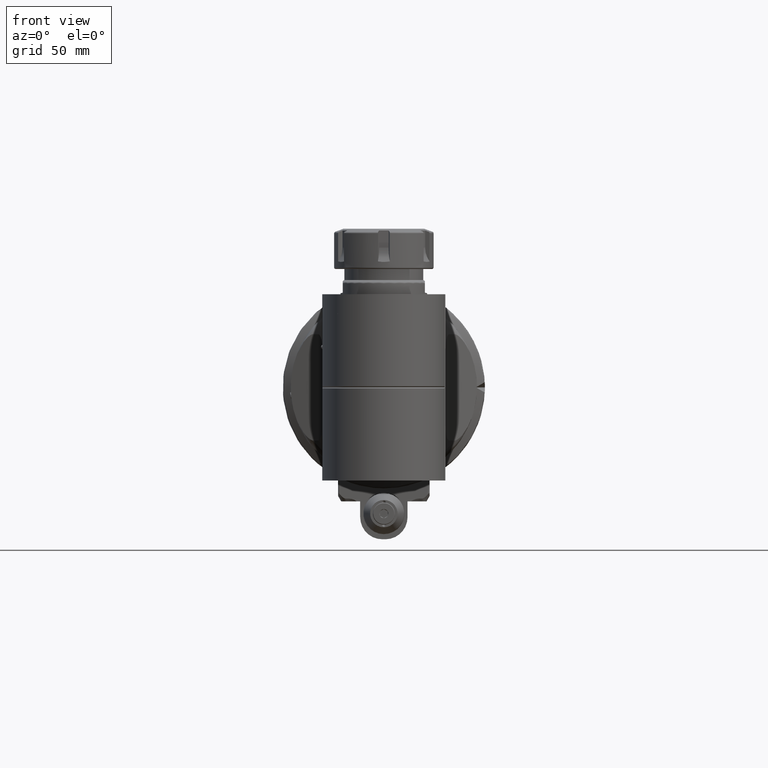
[diagram: clean part render]
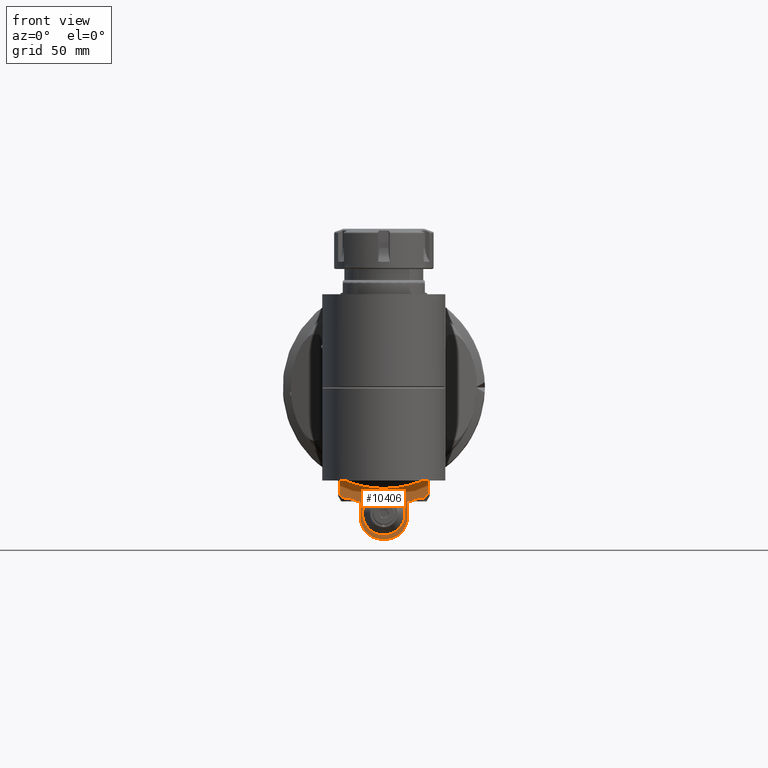
[diagram: same view with one face highlighted and labeled with its STEP entity id]
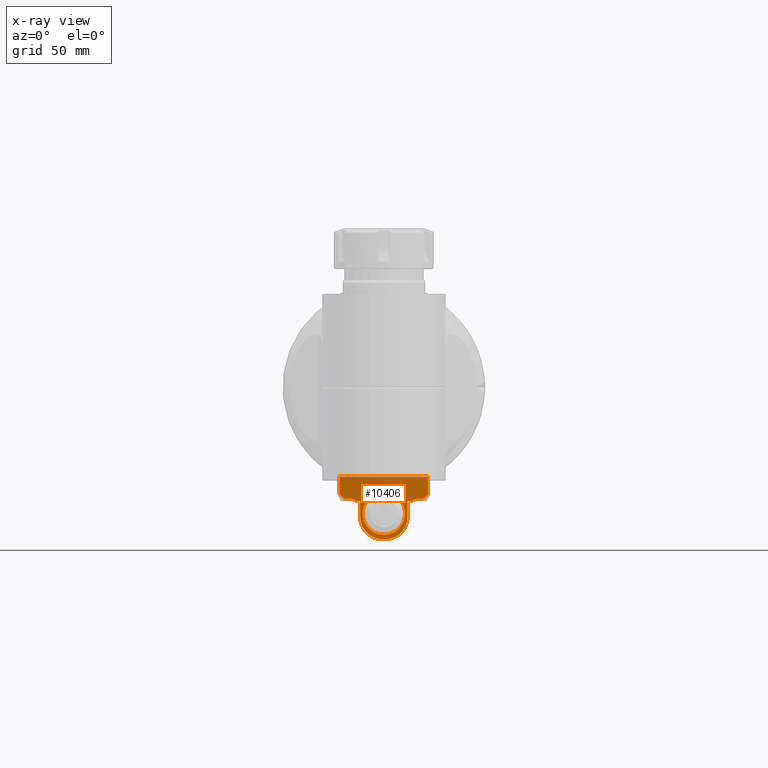
[diagram: x-ray of the same camera — body ghosted, the highlighted face saturated]
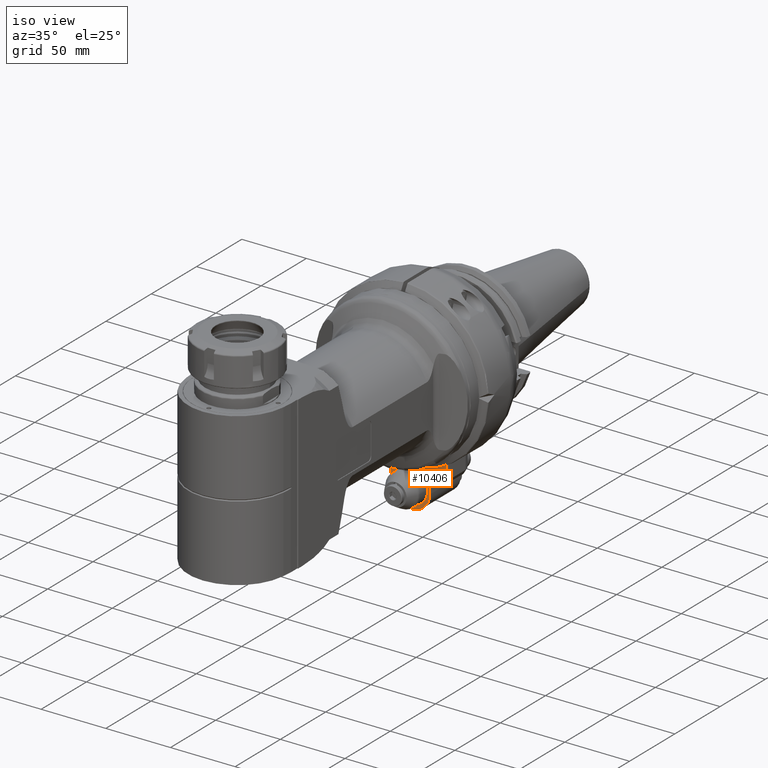
[diagram: same view with one face highlighted and labeled with its STEP entity id]
A machine part, front view. The second image highlights one B-rep face of the part: STEP entity #10406.
The next image is the same camera in x-ray: the body ghosted, the highlighted face saturated — about 16% of this face is hidden behind the body in this view.
A second angle (iso view) of the same face is appended — the face is thin or edge-on in the first view.
In plain terms, the highlighted planar face has unit normal (0, 1, -0).
Its self-contained STEP definition (entity closure, byte-faithful):
#641=FACE_BOUND('',#2124,.T.);
#946=CIRCLE('',#11324,14.);
#947=CIRCLE('',#11325,14.);
#948=CIRCLE('',#11326,13.5);
#1473=FACE_OUTER_BOUND('',#2123,.T.);
#2123=EDGE_LOOP('',(#8072,#8073,#8074,#8075,#8076,#8077,#8078,#8079,#8080,
#8081,#8082,#8083,#8084,#8085,#8086,#8087));
#2124=EDGE_LOOP('',(#8088));
#2620=(
BOUNDED_CURVE()
B_SPLINE_CURVE(2,(#17245,#17246,#17247),.UNSPECIFIED.,.F.,.F.)
B_SPLINE_CURVE_WITH_KNOTS((3,3),(-4.78120637818785,-3.61632373543562),
 .UNSPECIFIED.)
CURVE()
GEOMETRIC_REPRESENTATION_ITEM()
RATIONAL_B_SPLINE_CURVE((1.60140651826581,1.67103285195852,1.67103285195852))
REPRESENTATION_ITEM('')
);
#2621=(
BOUNDED_CURVE()
B_SPLINE_CURVE(2,(#17263,#17264,#17265),.UNSPECIFIED.,.F.,.F.)
B_SPLINE_CURVE_WITH_KNOTS((3,3),(2.45144109268339,3.61632373543562),
 .UNSPECIFIED.)
CURVE()
GEOMETRIC_REPRESENTATION_ITEM()
RATIONAL_B_SPLINE_CURVE((1.60140651826581,1.67103285195852,1.67103285195852))
REPRESENTATION_ITEM('')
);
#2622=(
BOUNDED_CURVE()
B_SPLINE_CURVE(2,(#17269,#17270,#17271),.UNSPECIFIED.,.F.,.F.)
B_SPLINE_CURVE_WITH_KNOTS((3,3),(0.802084003550109,1.89472960778239),
 .UNSPECIFIED.)
CURVE()
GEOMETRIC_REPRESENTATION_ITEM()
RATIONAL_B_SPLINE_CURVE((1.71135239382398,2.06578511985151,2.06578511985151))
REPRESENTATION_ITEM('')
);
#2623=(
BOUNDED_CURVE()
B_SPLINE_CURVE(2,(#17276,#17277,#17278),.UNSPECIFIED.,.F.,.F.)
B_SPLINE_CURVE_WITH_KNOTS((3,3),(1.89472960778294,2.98737521182979),
 .UNSPECIFIED.)
CURVE()
GEOMETRIC_REPRESENTATION_ITEM()
RATIONAL_B_SPLINE_CURVE((2.06578511985184,2.06578511985184,1.71135239394469))
REPRESENTATION_ITEM('')
);
#3027=LINE('',#17218,#3711);
#3033=LINE('',#17249,#3717);
#3034=LINE('',#17251,#3718);
#3035=LINE('',#17255,#3719);
#3036=LINE('',#17259,#3720);
#3037=LINE('',#17261,#3721);
#3038=LINE('',#17267,#3722);
#3039=LINE('',#17272,#3723);
#3040=LINE('',#17274,#3724);
#3041=LINE('',#17279,#3725);
#3711=VECTOR('',#13272,56.);
#3717=VECTOR('',#13296,2.101021651726);
#3718=VECTOR('',#13297,10.);
#3719=VECTOR('',#13300,2.);
#3720=VECTOR('',#13303,10.);
#3721=VECTOR('',#13304,2.101021651725);
#3722=VECTOR('',#13305,2.000000230854);
#3723=VECTOR('',#13306,10.89819431263);
#3724=VECTOR('',#13307,10.89819431378);
#3725=VECTOR('',#13308,2.000000230855);
#4559=VERTEX_POINT('',#17216);
#4560=VERTEX_POINT('',#17217);
#4571=VERTEX_POINT('',#17243);
#4572=VERTEX_POINT('',#17244);
#4573=VERTEX_POINT('',#17248);
#4574=VERTEX_POINT('',#17250);
#4575=VERTEX_POINT('',#17252);
#4576=VERTEX_POINT('',#17254);
#4577=VERTEX_POINT('',#17256);
#4578=VERTEX_POINT('',#17258);
#4579=VERTEX_POINT('',#17260);
#4580=VERTEX_POINT('',#17262);
#4581=VERTEX_POINT('',#17266);
#4582=VERTEX_POINT('',#17268);
#4583=VERTEX_POINT('',#17273);
#4584=VERTEX_POINT('',#17275);
#4585=VERTEX_POINT('',#17280);
#5823=EDGE_CURVE('',#4559,#4560,#3027,.T.);
#5837=EDGE_CURVE('',#4571,#4572,#2620,.T.);
#5838=EDGE_CURVE('',#4571,#4573,#3033,.T.);
#5839=EDGE_CURVE('',#4574,#4573,#3034,.T.);
#5840=EDGE_CURVE('',#4574,#4575,#946,.T.);
#5841=EDGE_CURVE('',#4576,#4575,#3035,.T.);
#5842=EDGE_CURVE('',#4576,#4577,#947,.T.);
#5843=EDGE_CURVE('',#4578,#4577,#3036,.T.);
#5844=EDGE_CURVE('',#4579,#4578,#3037,.T.);
#5845=EDGE_CURVE('',#4579,#4580,#2621,.T.);
#5846=EDGE_CURVE('',#4580,#4581,#3038,.T.);
#5847=EDGE_CURVE('',#4582,#4581,#2622,.T.);
#5848=EDGE_CURVE('',#4560,#4582,#3039,.T.);
#5849=EDGE_CURVE('',#4583,#4559,#3040,.T.);
#5850=EDGE_CURVE('',#4584,#4583,#2623,.T.);
#5851=EDGE_CURVE('',#4572,#4584,#3041,.T.);
#5852=EDGE_CURVE('',#4585,#4585,#948,.T.);
#8072=ORIENTED_EDGE('',*,*,#5837,.F.);
#8073=ORIENTED_EDGE('',*,*,#5838,.T.);
#8074=ORIENTED_EDGE('',*,*,#5839,.F.);
#8075=ORIENTED_EDGE('',*,*,#5840,.T.);
#8076=ORIENTED_EDGE('',*,*,#5841,.F.);
#8077=ORIENTED_EDGE('',*,*,#5842,.T.);
#8078=ORIENTED_EDGE('',*,*,#5843,.F.);
#8079=ORIENTED_EDGE('',*,*,#5844,.F.);
#8080=ORIENTED_EDGE('',*,*,#5845,.T.);
#8081=ORIENTED_EDGE('',*,*,#5846,.T.);
#8082=ORIENTED_EDGE('',*,*,#5847,.F.);
#8083=ORIENTED_EDGE('',*,*,#5848,.F.);
#8084=ORIENTED_EDGE('',*,*,#5823,.F.);
#8085=ORIENTED_EDGE('',*,*,#5849,.F.);
#8086=ORIENTED_EDGE('',*,*,#5850,.F.);
#8087=ORIENTED_EDGE('',*,*,#5851,.F.);
#8088=ORIENTED_EDGE('',*,*,#5852,.T.);
#9985=PLANE('',#11323);
#10406=ADVANCED_FACE('',(#1473,#641),#9985,.F.);
#11323=AXIS2_PLACEMENT_3D('',#17242,#13294,#13295);
#11324=AXIS2_PLACEMENT_3D('',#17253,#13298,#13299);
#11325=AXIS2_PLACEMENT_3D('',#17257,#13301,#13302);
#11326=AXIS2_PLACEMENT_3D('',#17281,#13309,#13310);
#13272=DIRECTION('',(1.,0.,0.));
#13294=DIRECTION('center_axis',(0.,1.,0.));
#13295=DIRECTION('ref_axis',(0.,0.,1.));
#13296=DIRECTION('',(1.,0.,0.));
#13297=DIRECTION('',(0.,0.,1.));
#13298=DIRECTION('center_axis',(0.,-1.,0.));
#13299=DIRECTION('ref_axis',(-1.,0.,0.));
#13300=DIRECTION('',(-1.,0.,0.));
#13301=DIRECTION('center_axis',(0.,-1.,0.));
#13302=DIRECTION('ref_axis',(0.,0.,-1.));
#13303=DIRECTION('',(0.,0.,-1.));
#13304=DIRECTION('',(-1.,0.,0.));
#13305=DIRECTION('',(1.,1.243449644052E-14,-2.842170614977E-14));
#13306=DIRECTION('',(1.193516107229E-9,6.713915828753E-11,-1.));
#13307=DIRECTION('',(1.102172440227E-9,-6.199958357225E-11,1.));
#13308=DIRECTION('',(-1.,1.953992297796E-14,-3.197441941848E-14));
#13309=DIRECTION('center_axis',(0.,1.,0.));
#13310=DIRECTION('ref_axis',(0.,0.,-1.));
#17216=CARTESIAN_POINT('',(-28.,7.999999769231,-56.75));
#17217=CARTESIAN_POINT('',(28.,7.999999769231,-56.75));
#17218=CARTESIAN_POINT('',(-28.,7.999999769231,-56.75));
#17242=CARTESIAN_POINT('Origin',(0.,7.999999769231,-55.75));
#17243=CARTESIAN_POINT('',(-17.10102165173,7.999999769231,-72.25));
#17244=CARTESIAN_POINT('',(-22.,7.999999769231,-70.51795003158));
#17245=CARTESIAN_POINT('Ctrl Pts',(-17.1010216517443,7.999999769231,-72.2499999999893));
#17246=CARTESIAN_POINT('Ctrl Pts',(-19.6525728232857,7.999999769231,-70.5179500315845));
#17247=CARTESIAN_POINT('Ctrl Pts',(-22.,7.999999769231,-70.5179500315845));
#17248=CARTESIAN_POINT('',(-15.,7.999999769231,-72.25));
#17249=CARTESIAN_POINT('',(-17.10102165173,7.999999769231,-72.25));
#17250=CARTESIAN_POINT('',(-15.,7.999999769231,-82.25));
#17251=CARTESIAN_POINT('',(-15.,7.999999769231,-82.25));
#17252=CARTESIAN_POINT('',(-1.,7.999999769231,-96.25));
#17253=CARTESIAN_POINT('Origin',(-1.,7.999999769231,-82.25));
#17254=CARTESIAN_POINT('',(1.,7.999999769231,-96.25));
#17255=CARTESIAN_POINT('',(1.,7.999999769231,-96.25));
#17256=CARTESIAN_POINT('',(15.,7.999999769231,-82.25));
#17257=CARTESIAN_POINT('Origin',(1.,7.999999769231,-82.25));
#17258=CARTESIAN_POINT('',(15.,7.999999769231,-72.25));
#17259=CARTESIAN_POINT('',(15.,7.999999769231,-72.25));
#17260=CARTESIAN_POINT('',(17.10102165173,7.999999769231,-72.25));
#17261=CARTESIAN_POINT('',(17.10102165173,7.999999769231,-72.25));
#17262=CARTESIAN_POINT('',(22.,7.999999769231,-70.51795003158));
#17263=CARTESIAN_POINT('Ctrl Pts',(17.1010216517443,7.999999769231,-72.2499999999893));
#17264=CARTESIAN_POINT('Ctrl Pts',(19.6525728232857,7.999999769231,-70.5179500315845));
#17265=CARTESIAN_POINT('Ctrl Pts',(22.,7.999999769231,-70.5179500315845));
#17266=CARTESIAN_POINT('',(24.00000023085,7.999999769231,-70.51795003158));
#17267=CARTESIAN_POINT('',(22.,7.999999769231,-70.51795003158));
#17268=CARTESIAN_POINT('',(28.00000001301,7.999999769961,-67.64819431263));
#17269=CARTESIAN_POINT('Ctrl Pts',(28.0000000125725,7.999999769231,-67.6481943122728));
#17270=CARTESIAN_POINT('Ctrl Pts',(25.6568543576331,7.999999769231,-70.5179500315753));
#17271=CARTESIAN_POINT('Ctrl Pts',(24.00000023085,7.999999769231,-70.5179500315753));
#17272=CARTESIAN_POINT('',(28.,7.999999769231,-56.75));
#17273=CARTESIAN_POINT('',(-28.00000001201,7.999999769911,-67.64819431378));
#17274=CARTESIAN_POINT('',(-28.00000001201,7.999999769911,-67.64819431378));
#17275=CARTESIAN_POINT('',(-24.00000023085,7.999999769231,-70.51795003158));
#17276=CARTESIAN_POINT('Ctrl Pts',(-24.00000023085,7.999999769231,-70.5179500315799));
#17277=CARTESIAN_POINT('Ctrl Pts',(-25.6568543573516,7.999999769231,-70.5179500315799));
#17278=CARTESIAN_POINT('Ctrl Pts',(-28.0000000116114,7.999999769231,-67.6481943134545));
#17279=CARTESIAN_POINT('',(-22.,7.999999769231,-70.51795003158));
#17280=CARTESIAN_POINT('',(0.,7.999999769231,-66.5));
#17281=CARTESIAN_POINT('Origin',(0.,7.999999769231,-80.));